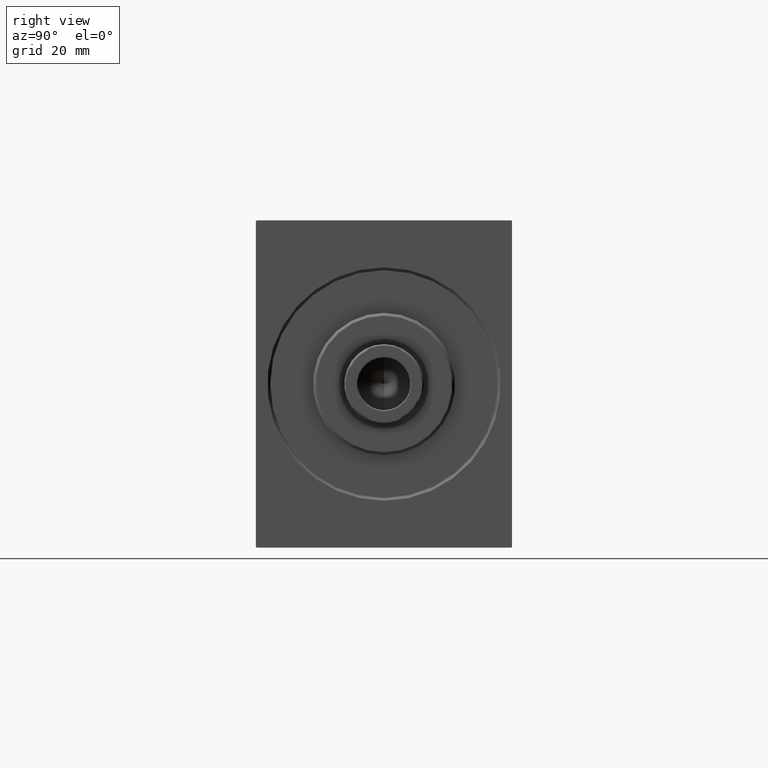
[diagram: clean part render]
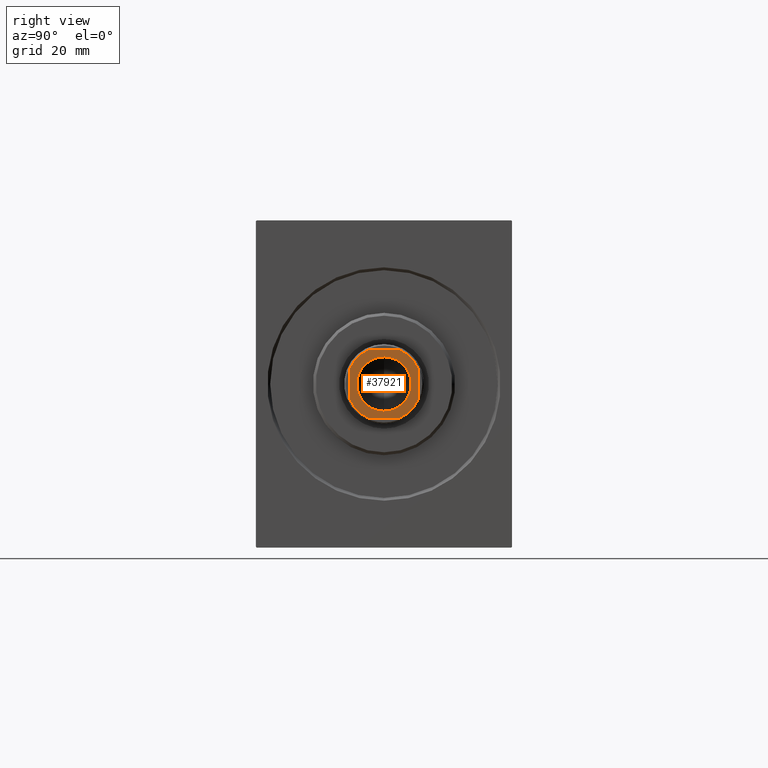
[diagram: same view with one face highlighted and labeled with its STEP entity id]
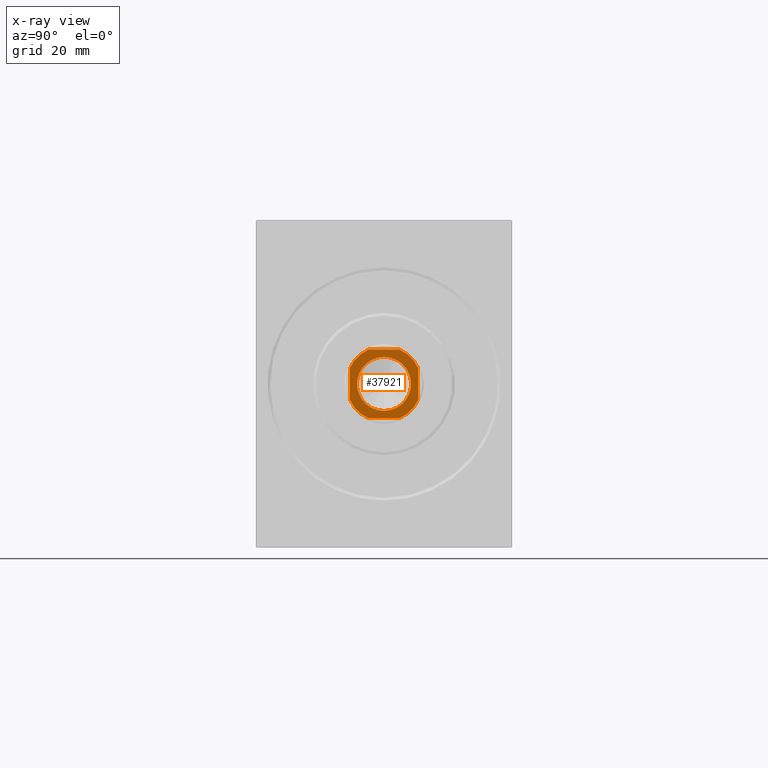
[diagram: x-ray of the same camera — body ghosted, the highlighted face saturated]
A machine part, right view. The second image highlights one B-rep face of the part: STEP entity #37921.
The next image is the same camera in x-ray: the body ghosted, the highlighted face saturated — about 0% of this face is hidden behind the body in this view.
In plain terms, the highlighted planar face has unit normal (1, 0, -0).
Its self-contained STEP definition (entity closure, byte-faithful):
#1536 = CARTESIAN_POINT ( 'NONE',  ( 0.000000000000000000, 0.000000000000000000, 194.0000000000000000 ) ) ;
#1726 = FACE_BOUND ( 'NONE', #41873, .T. ) ;
#1966 = CIRCLE ( 'NONE', #35923, 13.19999999999985896 ) ;
#2639 = DIRECTION ( 'NONE',  ( 1.000000000000000000, 0.000000000000000000, 0.000000000000000000 ) ) ;
#3672 = CARTESIAN_POINT ( 'NONE',  ( -12.00000000000000178, 5.499090833946787882, 194.0000000000000000 ) ) ;
#3857 = EDGE_CURVE ( 'NONE', #32384, #39564, #37848, .T. ) ;
#4783 = CARTESIAN_POINT ( 'NONE',  ( -5.499090833946784329, -12.00000000000000355, 194.0000000000000000 ) ) ;
#5672 = CARTESIAN_POINT ( 'NONE',  ( 11.99999999999999645, 5.499090833946675971, 194.0000000000000000 ) ) ;
#5842 = EDGE_CURVE ( 'NONE', #9811, #15339, #42036, .T. ) ;
#6033 = CARTESIAN_POINT ( 'NONE',  ( 12.00000000000000000, -5.499090833946674195, 194.0000000000000000 ) ) ;
#6101 = CARTESIAN_POINT ( 'NONE',  ( -12.00000000000000355, 11.99999999999999645, 194.0000000000000000 ) ) ;
#7242 = CARTESIAN_POINT ( 'NONE',  ( 0.000000000000000000, 0.000000000000000000, 194.0000000000000000 ) ) ;
#7299 = ORIENTED_EDGE ( 'NONE', *, *, #20854, .T. ) ;
#7681 = LINE ( 'NONE', #30458, #40423 ) ;
#9461 = AXIS2_PLACEMENT_3D ( 'NONE', #24444, #34213, #27923 ) ;
#9811 = VERTEX_POINT ( 'NONE', #13359 ) ;
#10186 = CARTESIAN_POINT ( 'NONE',  ( 9.549999999999975842, 0.000000000000000000, 194.0000000000000000 ) ) ;
#10537 = AXIS2_PLACEMENT_3D ( 'NONE', #1536, #24733, #37968 ) ;
#10631 = CARTESIAN_POINT ( 'NONE',  ( 0.000000000000000000, 0.000000000000000000, 194.0000000000000000 ) ) ;
#11058 = DIRECTION ( 'NONE',  ( 1.000000000000000000, 0.000000000000000000, 0.000000000000000000 ) ) ;
#11079 = DIRECTION ( 'NONE',  ( -0.000000000000000000, 0.000000000000000000, 1.000000000000000000 ) ) ;
#11291 = CARTESIAN_POINT ( 'NONE',  ( 0.000000000000000000, 0.000000000000000000, 194.0000000000000000 ) ) ;
#11477 = CARTESIAN_POINT ( 'NONE',  ( 5.499090833946680412, 11.99999999999999645, 194.0000000000000000 ) ) ;
#11912 = CARTESIAN_POINT ( 'NONE',  ( -12.00000000000000355, 11.99999999999999645, 194.0000000000000000 ) ) ;
#12022 = VERTEX_POINT ( 'NONE', #21956 ) ;
#12826 = CIRCLE ( 'NONE', #38465, 13.19999999999991047 ) ;
#13359 = CARTESIAN_POINT ( 'NONE',  ( -9.549999999999975842, 1.169537693185719205E-15, 194.0000000000000000 ) ) ;
#13846 = ORIENTED_EDGE ( 'NONE', *, *, #5842, .T. ) ;
#14340 = VECTOR ( 'NONE', #32995, 1000.000000000000000 ) ;
#14516 = FACE_OUTER_BOUND ( 'NONE', #40465, .T. ) ;
#14942 = CARTESIAN_POINT ( 'NONE',  ( 0.000000000000000000, 0.000000000000000000, 194.0000000000000000 ) ) ;
#15130 = ORIENTED_EDGE ( 'NONE', *, *, #28994, .T. ) ;
#15339 = VERTEX_POINT ( 'NONE', #10186 ) ;
#15374 = LINE ( 'NONE', #11912, #19294 ) ;
#15635 = CARTESIAN_POINT ( 'NONE',  ( -11.99999999999999822, -12.00000000000000355, 194.0000000000000000 ) ) ;
#15706 = AXIS2_PLACEMENT_3D ( 'NONE', #7242, #24578, #17640 ) ;
#16028 = EDGE_CURVE ( 'NONE', #22065, #27393, #40426, .T. ) ;
#16619 = DIRECTION ( 'NONE',  ( -0.000000000000000000, 0.000000000000000000, 1.000000000000000000 ) ) ;
#17551 = DIRECTION ( 'NONE',  ( -0.000000000000000000, 0.000000000000000000, 1.000000000000000000 ) ) ;
#17640 = DIRECTION ( 'NONE',  ( 1.000000000000000000, 0.000000000000000000, 0.000000000000000000 ) ) ;
#18843 = ORIENTED_EDGE ( 'NONE', *, *, #29306, .T. ) ;
#19294 = VECTOR ( 'NONE', #38377, 1000.000000000000000 ) ;
#19561 = CARTESIAN_POINT ( 'NONE',  ( 5.499090833946663537, -12.00000000000000355, 194.0000000000000000 ) ) ;
#19766 = LINE ( 'NONE', #6101, #14340 ) ;
#20050 = ORIENTED_EDGE ( 'NONE', *, *, #38654, .T. ) ;
#20711 = DIRECTION ( 'NONE',  ( -2.168404344971008868E-16, 1.000000000000000000, -0.000000000000000000 ) ) ;
#20854 = EDGE_CURVE ( 'NONE', #27393, #31924, #7681, .T. ) ;
#21956 = CARTESIAN_POINT ( 'NONE',  ( -12.00000000000000000, -5.499090833946789658, 194.0000000000000000 ) ) ;
#22065 = VERTEX_POINT ( 'NONE', #19561 ) ;
#22424 = ORIENTED_EDGE ( 'NONE', *, *, #3857, .T. ) ;
#23850 = DIRECTION ( 'NONE',  ( 1.000000000000000000, 0.000000000000000000, 0.000000000000000000 ) ) ;
#24032 = CARTESIAN_POINT ( 'NONE',  ( -5.499090833946799428, 11.99999999999999645, 194.0000000000000000 ) ) ;
#24444 = CARTESIAN_POINT ( 'NONE',  ( 0.000000000000000000, 0.000000000000000000, 194.0000000000000000 ) ) ;
#24578 = DIRECTION ( 'NONE',  ( 0.000000000000000000, -0.000000000000000000, -1.000000000000000000 ) ) ;
#24601 = ORIENTED_EDGE ( 'NONE', *, *, #25509, .T. ) ;
#24733 = DIRECTION ( 'NONE',  ( -0.000000000000000000, 0.000000000000000000, 1.000000000000000000 ) ) ;
#25509 = EDGE_CURVE ( 'NONE', #12022, #32128, #12826, .T. ) ;
#27393 = VERTEX_POINT ( 'NONE', #6033 ) ;
#27543 = PLANE ( 'NONE',  #42112 ) ;
#27923 = DIRECTION ( 'NONE',  ( 1.000000000000000000, 0.000000000000000000, 0.000000000000000000 ) ) ;
#28403 = VERTEX_POINT ( 'NONE', #11477 ) ;
#28994 = EDGE_CURVE ( 'NONE', #32128, #22065, #32127, .T. ) ;
#29306 = EDGE_CURVE ( 'NONE', #15339, #9811, #42700, .T. ) ;
#29849 = DIRECTION ( 'NONE',  ( 1.000000000000000000, 0.000000000000000000, 0.000000000000000000 ) ) ;
#30127 = ORIENTED_EDGE ( 'NONE', *, *, #39028, .T. ) ;
#30458 = CARTESIAN_POINT ( 'NONE',  ( 11.99999999999999645, 11.99999999999999645, 194.0000000000000000 ) ) ;
#31924 = VERTEX_POINT ( 'NONE', #5672 ) ;
#32127 = LINE ( 'NONE', #15635, #41317 ) ;
#32128 = VERTEX_POINT ( 'NONE', #4783 ) ;
#32384 = VERTEX_POINT ( 'NONE', #24032 ) ;
#32889 = CARTESIAN_POINT ( 'NONE',  ( 0.000000000000000000, 0.000000000000000000, 194.0000000000000000 ) ) ;
#32995 = DIRECTION ( 'NONE',  ( -1.000000000000000000, -0.000000000000000000, -0.000000000000000000 ) ) ;
#34213 = DIRECTION ( 'NONE',  ( -0.000000000000000000, 0.000000000000000000, 1.000000000000000000 ) ) ;
#35676 = EDGE_CURVE ( 'NONE', #28403, #32384, #19766, .T. ) ;
#35923 = AXIS2_PLACEMENT_3D ( 'NONE', #32889, #16619, #29849 ) ;
#36723 = ORIENTED_EDGE ( 'NONE', *, *, #16028, .T. ) ;
#37197 = AXIS2_PLACEMENT_3D ( 'NONE', #10631, #37308, #23850 ) ;
#37308 = DIRECTION ( 'NONE',  ( 0.000000000000000000, -0.000000000000000000, -1.000000000000000000 ) ) ;
#37848 = CIRCLE ( 'NONE', #9461, 13.19999999999991047 ) ;
#37921 = ADVANCED_FACE ( 'NONE', ( #1726, #14516 ), #27543, .T. ) ;
#37968 = DIRECTION ( 'NONE',  ( 1.000000000000000000, 0.000000000000000000, 0.000000000000000000 ) ) ;
#38377 = DIRECTION ( 'NONE',  ( 2.168404344971008868E-16, -1.000000000000000000, 0.000000000000000000 ) ) ;
#38465 = AXIS2_PLACEMENT_3D ( 'NONE', #11291, #11079, #40582 ) ;
#38654 = EDGE_CURVE ( 'NONE', #39564, #12022, #15374, .T. ) ;
#39028 = EDGE_CURVE ( 'NONE', #31924, #28403, #1966, .T. ) ;
#39564 = VERTEX_POINT ( 'NONE', #3672 ) ;
#40423 = VECTOR ( 'NONE', #20711, 1000.000000000000000 ) ;
#40426 = CIRCLE ( 'NONE', #10537, 13.19999999999985896 ) ;
#40465 = EDGE_LOOP ( 'NONE', ( #7299, #30127, #40537, #22424, #20050, #24601, #15130, #36723 ) ) ;
#40537 = ORIENTED_EDGE ( 'NONE', *, *, #35676, .T. ) ;
#40582 = DIRECTION ( 'NONE',  ( 1.000000000000000000, 0.000000000000000000, 0.000000000000000000 ) ) ;
#41317 = VECTOR ( 'NONE', #2639, 1000.000000000000000 ) ;
#41873 = EDGE_LOOP ( 'NONE', ( #18843, #13846 ) ) ;
#42036 = CIRCLE ( 'NONE', #15706, 9.549999999999975842 ) ;
#42112 = AXIS2_PLACEMENT_3D ( 'NONE', #14942, #17551, #11058 ) ;
#42700 = CIRCLE ( 'NONE', #37197, 9.549999999999975842 ) ;